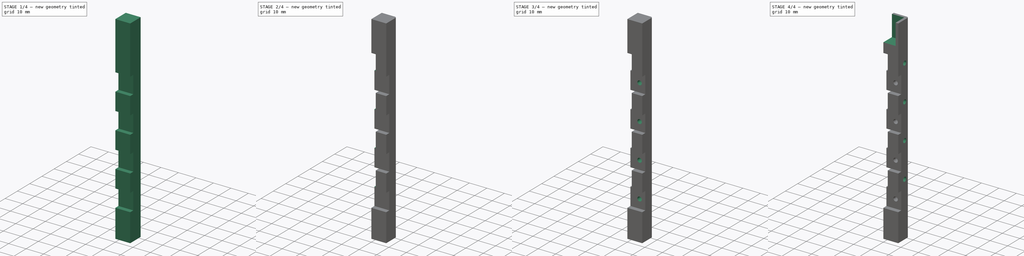
[diagram: build sequence overview — one tinted view per stage of 4, left to right]
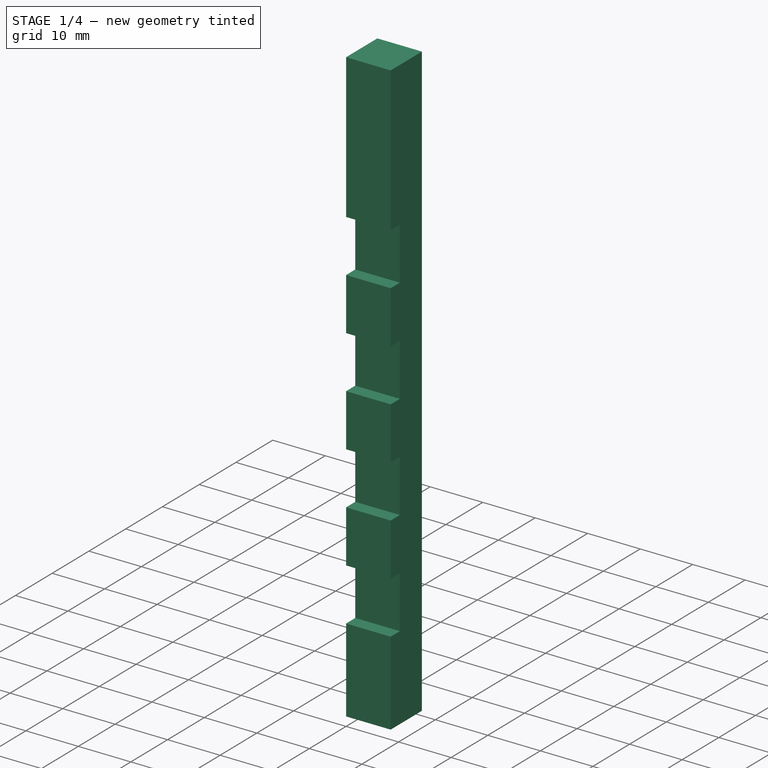
[diagram: stage 1 of 4 — iso view after this stage's code; geometry added in this stage tinted green]
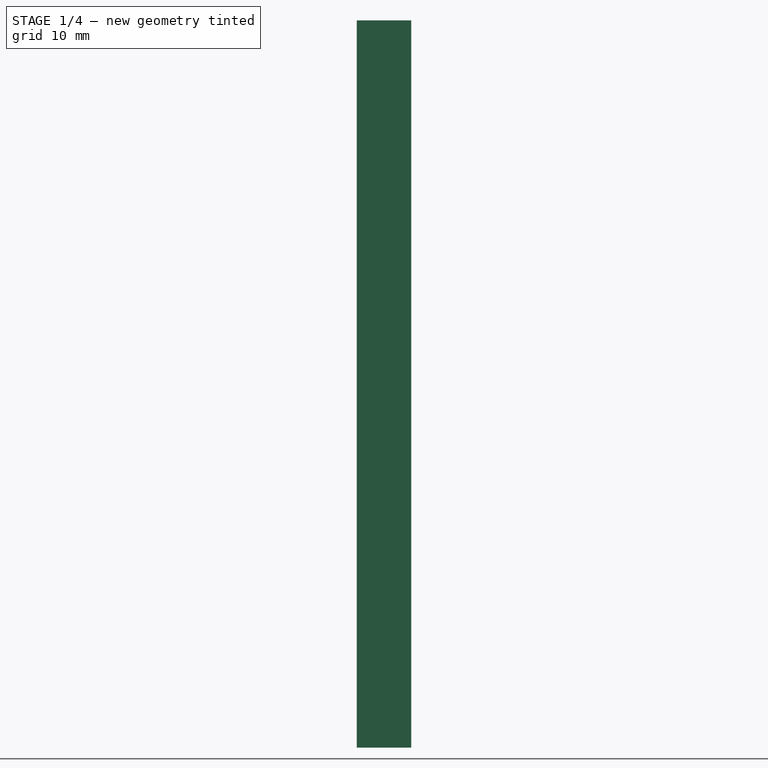
[diagram: stage 1 of 4 — front view after this stage's code; geometry added in this stage tinted green]
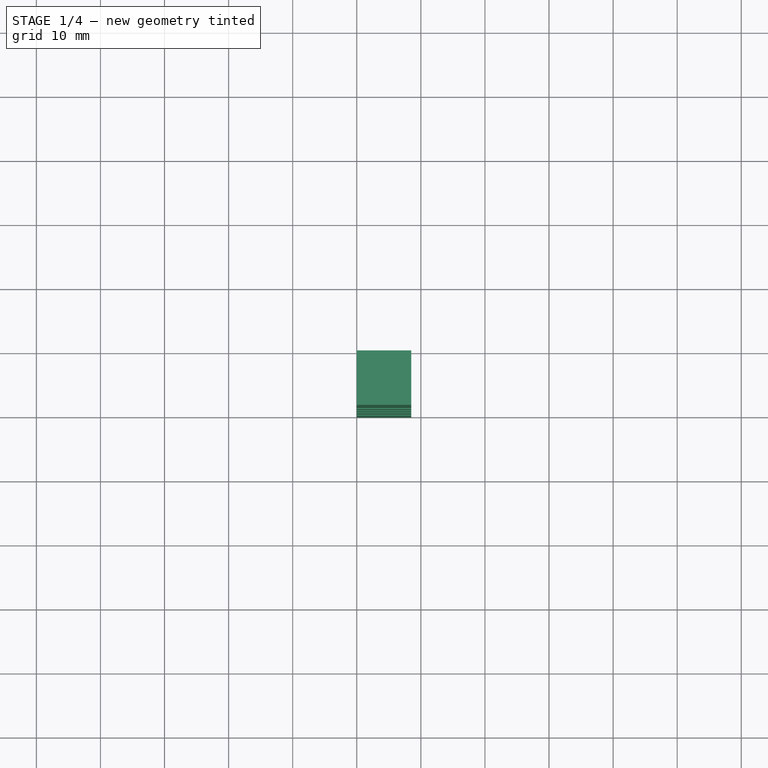
[diagram: stage 1 of 4 — top view after this stage's code; geometry added in this stage tinted green]
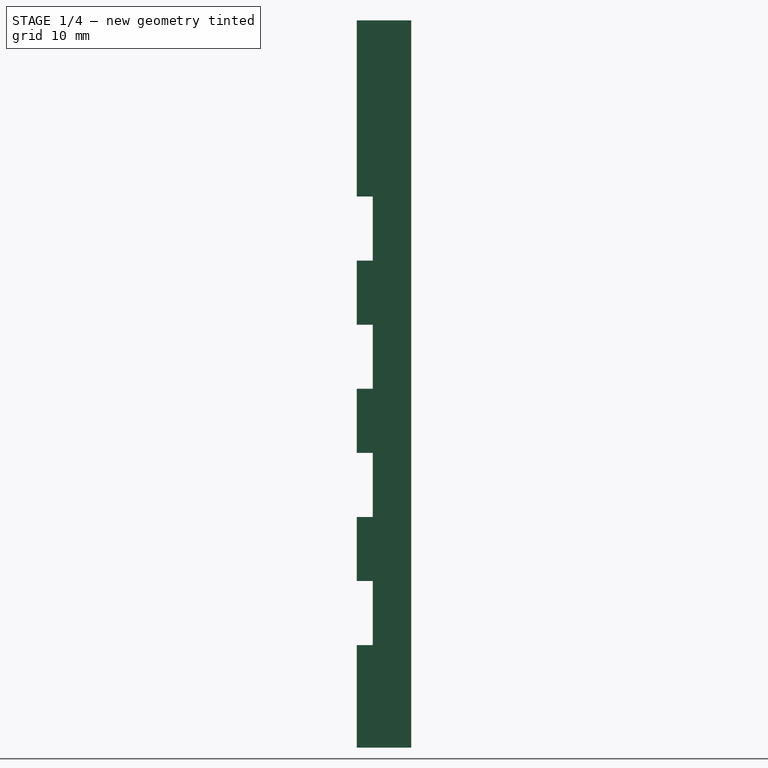
[diagram: stage 1 of 4 — right view after this stage's code; geometry added in this stage tinted green]
FCSTD DOCUMENT  (FreeCAD 0.16R6710 (Git))
Label: columna-con-deployment-switch
License: All rights reserved
LicenseURL: http://en.wikipedia.org/wiki/All_rights_reserved
objects: Drawing::FeatureViewPython×21, Sketcher::SketchObject×6, PartDesign::Pocket×5, PartDesign::LinearPattern×4, Drawing::FeatureViewPart×4, PartDesign::Pad×1, PartDesign::Fillet×1, Drawing::FeaturePage×1
note: 23 computed .brp shape members not serialized (recipe doc carries the construction recipe); baked Part::Feature solids carry a one-line shape summary decoded from their .brp

FEATURE [Sketcher::SketchObject] Sketch
  sketch-geometry (4):
    g0: LineSegment StartX=0 StartY=0 StartZ=0 EndX=8.5 EndY=0 EndZ=0
    g1: LineSegment StartX=8.5 StartY=0 StartZ=0 EndX=8.5 EndY=8.5 EndZ=0
    g2: LineSegment StartX=8.5 StartY=8.5 StartZ=0 EndX=0 EndY=8.5 EndZ=0
    g3: LineSegment StartX=0 StartY=8.5 StartZ=0 EndX=0 EndY=0 EndZ=0
  constraints (11):
    c: Coincident(g0,g1)
    c: Coincident(g1,g2)
    c: Coincident(g2,g3)
    c: Coincident(g3,g0)
    c: Horizontal(g0)
    c: Horizontal(g2)
    c: Vertical(g1)
    c: Vertical(g3)
    c: Equal(g0,g1)
    c: DistanceY(g1,g1) = 8.5
    c: Coincident(g0,g-1)
FEATURE [PartDesign::Pad] Pad
  Length = 113.5
  Length2 = 100
  Sketch = -> Sketch
  Type = 0
FEATURE [Sketcher::SketchObject] Sketch001
  ExternalGeometry = -> [Pad]
  Placement = pos=(0,0,0) rot=(1,0,0;1.5708rad)
  Support = -> Pad [Face1]
  sketch-geometry (4):
    g0: LineSegment StartX=-0.589031 StartY=16 StartZ=0 EndX=9.41097 EndY=16 EndZ=0
    g1: LineSegment StartX=9.41097 StartY=16 StartZ=0 EndX=9.41097 EndY=26 EndZ=0
    g2: LineSegment StartX=9.41097 StartY=26 StartZ=0 EndX=-0.589031 EndY=26 EndZ=0
    g3: LineSegment StartX=-0.589031 StartY=26 StartZ=0 EndX=-0.589031 EndY=16 EndZ=0
  constraints (11):
    c: Coincident(g0,g1)
    c: Coincident(g1,g2)
    c: Coincident(g2,g3)
    c: Coincident(g3,g0)
    c: Horizontal(g0)
    c: Horizontal(g2)
    c: Vertical(g1)
    c: Vertical(g3)
    c: Equal(g1,g0)
    c: DistanceY(g1,g1) = 10
    c: DistanceY(g-1,g0) = 16
FEATURE [PartDesign::Pocket] Pocket
  Length = 2.5
  Sketch = -> Sketch001
  Type = 0
FEATURE [PartDesign::LinearPattern] LinearPattern
  Direction = -> Sketch001 [V_Axis]
  Length = 60
  Occurrences = 4
  Originals = -> [Pocket]
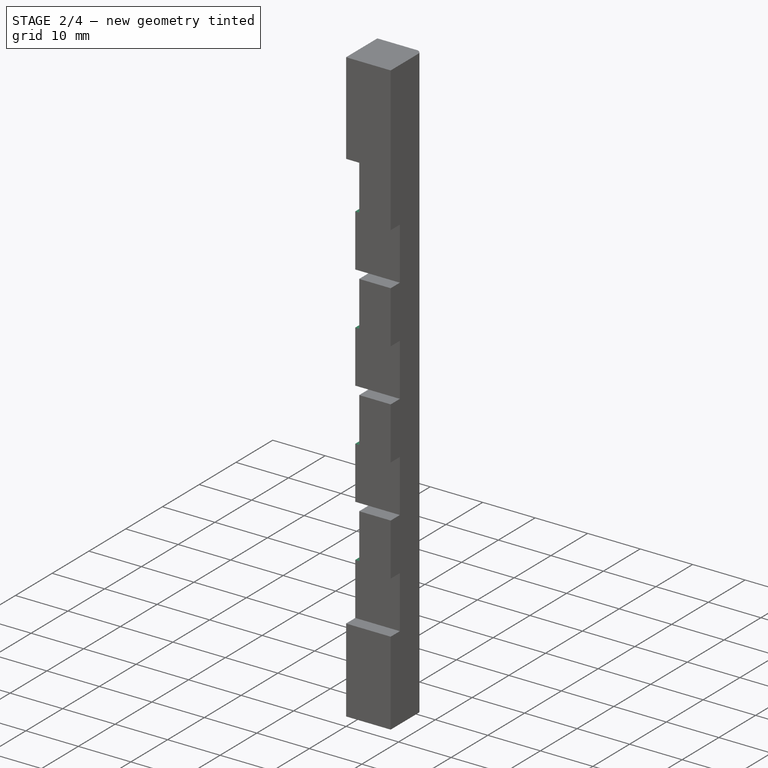
[diagram: stage 2 of 4 — iso view after this stage's code; geometry added in this stage tinted green]
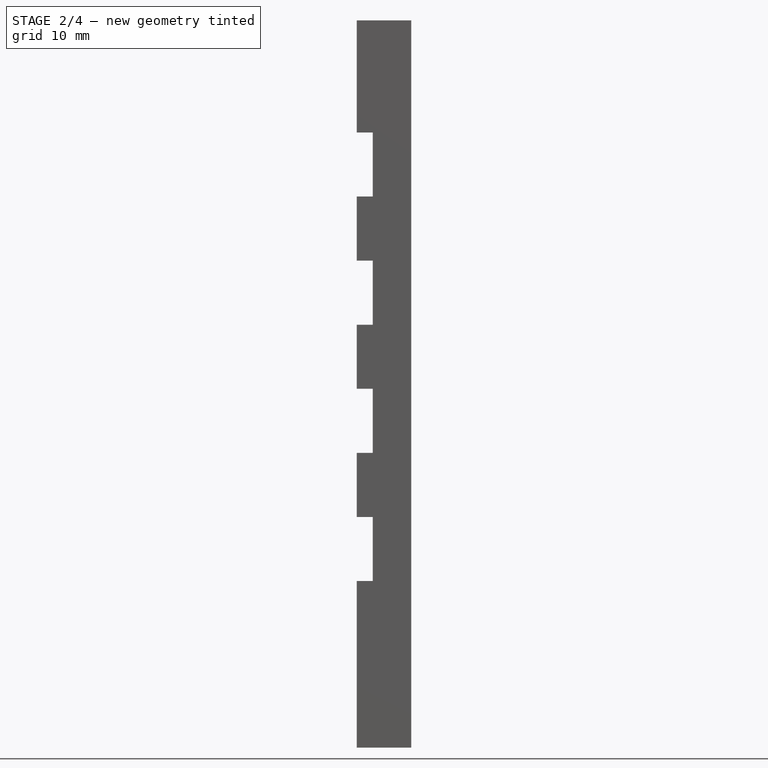
[diagram: stage 2 of 4 — front view after this stage's code; geometry added in this stage tinted green]
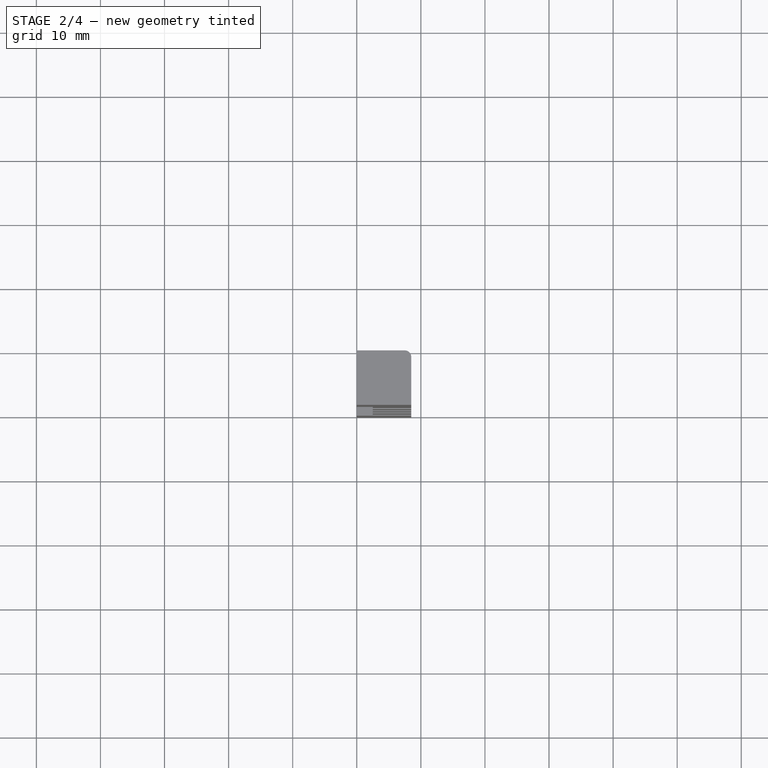
[diagram: stage 2 of 4 — top view after this stage's code; geometry added in this stage tinted green]
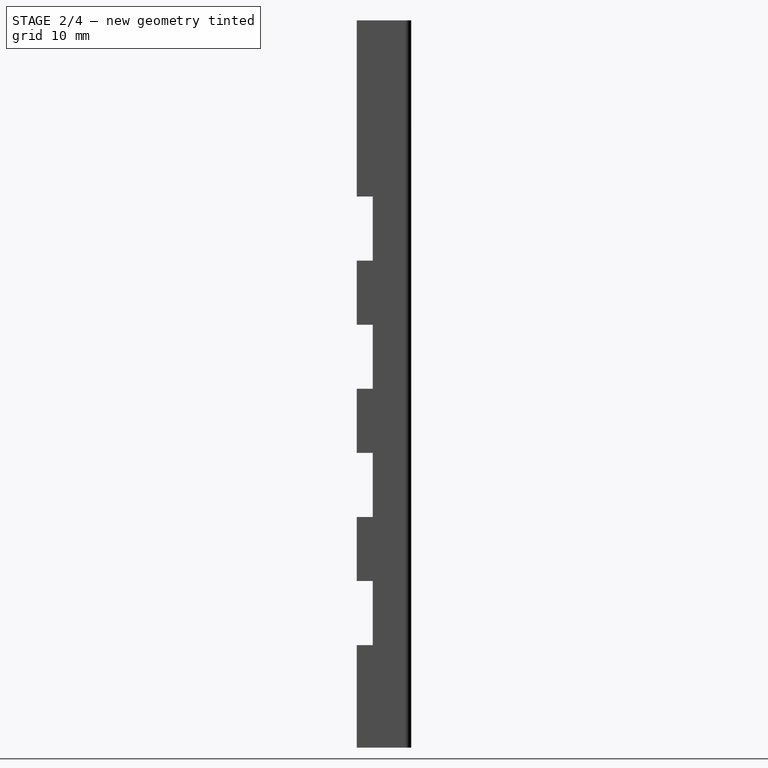
[diagram: stage 2 of 4 — right view after this stage's code; geometry added in this stage tinted green]
FEATURE [Sketcher::SketchObject] Sketch002
  Placement = pos=(0,0,0) rot=(0.57735,-0.57735,-0.57735;2.0944rad)
  Support = -> LinearPattern [Face5]
  sketch-geometry (4):
    g0: LineSegment StartX=-9.32683 StartY=36 StartZ=0 EndX=0.673175 EndY=36 EndZ=0
    g1: LineSegment StartX=0.673175 StartY=36 StartZ=0 EndX=0.673175 EndY=26 EndZ=0
    g2: LineSegment StartX=0.673175 StartY=26 StartZ=0 EndX=-9.32683 EndY=26 EndZ=0
    g3: LineSegment StartX=-9.32683 StartY=26 StartZ=0 EndX=-9.32683 EndY=36 EndZ=0
  constraints (11):
    c: Coincident(g0,g1)
    c: Coincident(g1,g2)
    c: Coincident(g2,g3)
    c: Coincident(g3,g0)
    c: Horizontal(g0)
    c: Horizontal(g2)
    c: Vertical(g1)
    c: Vertical(g3)
    c: Equal(g2,g1)
    c: DistanceY(g1,g1) = 10
    c: DistanceY(g-1,g2) = 26
FEATURE [PartDesign::Pocket] Pocket001
  Length = 2.5
  Sketch = -> Sketch002
  Type = 0
FEATURE [PartDesign::LinearPattern] LinearPattern001
  Direction = -> Sketch002 [V_Axis]
  Length = 60
  Occurrences = 4
  Originals = -> [Pocket001]
FEATURE [PartDesign::Fillet] Fillet
  Base = -> LinearPattern001 [Edge8]
  Radius = 1
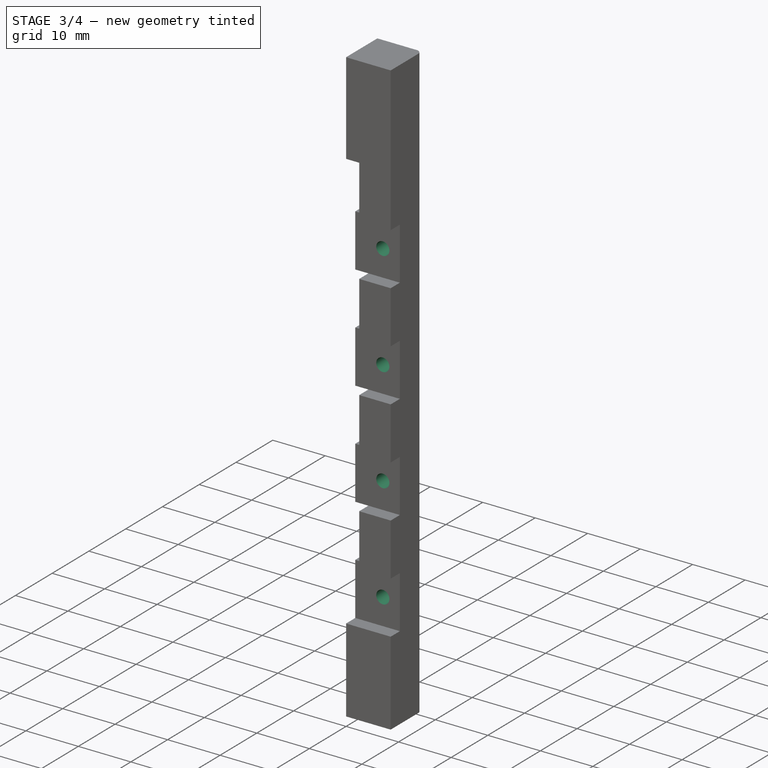
[diagram: stage 3 of 4 — iso view after this stage's code; geometry added in this stage tinted green]
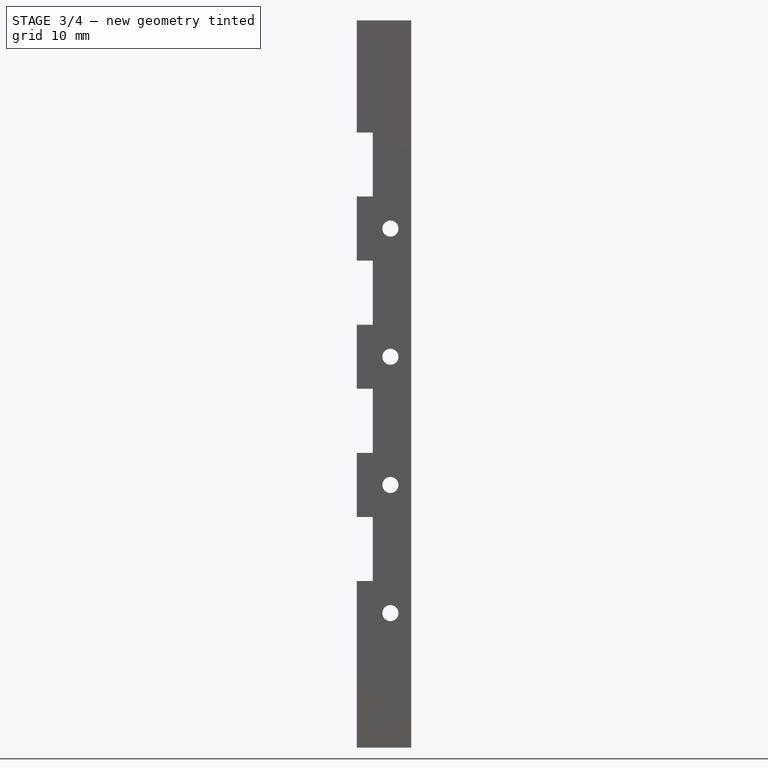
[diagram: stage 3 of 4 — front view after this stage's code; geometry added in this stage tinted green]
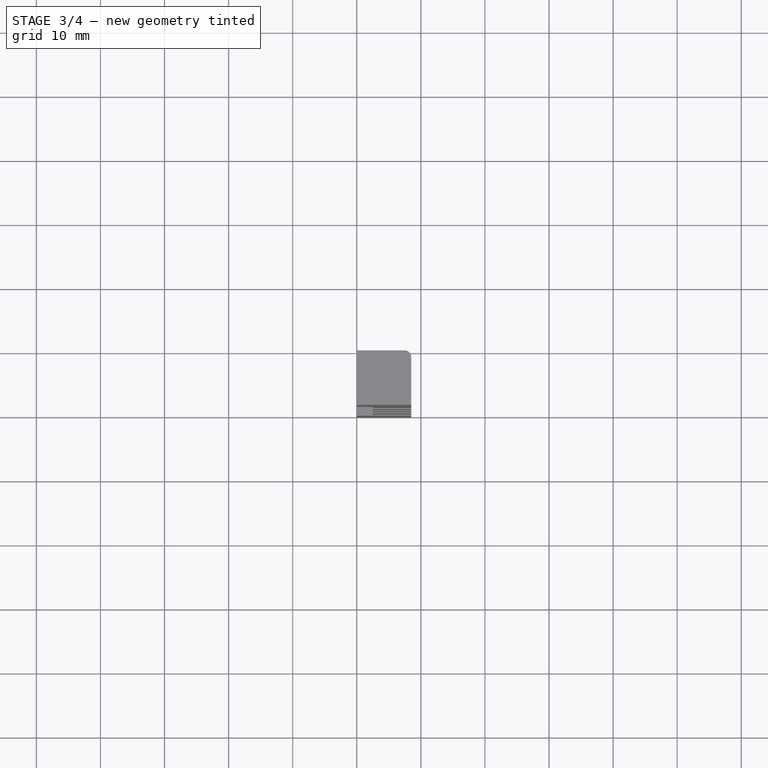
[diagram: stage 3 of 4 — top view after this stage's code; geometry added in this stage tinted green]
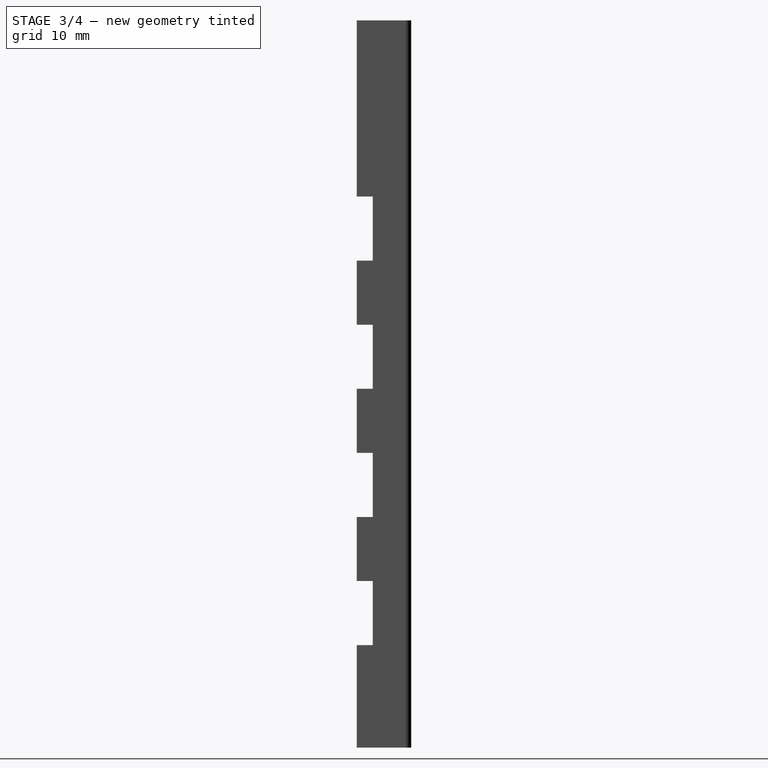
[diagram: stage 3 of 4 — right view after this stage's code; geometry added in this stage tinted green]
FEATURE [Sketcher::SketchObject] Sketch003
  ExternalGeometry = -> [Fillet]
  Placement = pos=(0,2.5,0) rot=(1,0,0;1.5708rad)
  Support = -> Fillet [Face10]
  sketch-geometry (1):
    g0: Circle CenterX=5.25 CenterY=21 CenterZ=0 NormalX=0 NormalY=0 NormalZ=1 Radius=1.25
  constraints (3):
    c: Radius(g0) = 1.25
    c: DistanceY(g-3,g0) = 21
    c: DistanceX(g0,g-3) = 3.25
FEATURE [PartDesign::Pocket] Pocket002
  Length = 5
  Sketch = -> Sketch003
  Type = 1
FEATURE [PartDesign::LinearPattern] LinearPattern002
  Direction = -> Sketch003 [V_Axis]
  Length = 60
  Occurrences = 4
  Originals = -> [Pocket002]
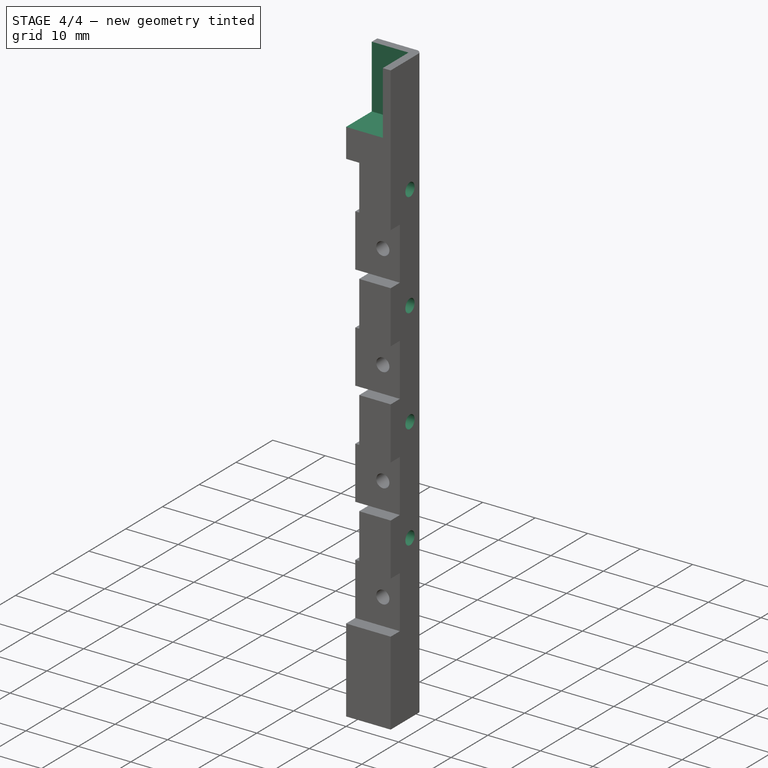
[diagram: stage 4 of 4 — iso view after this stage's code; geometry added in this stage tinted green]
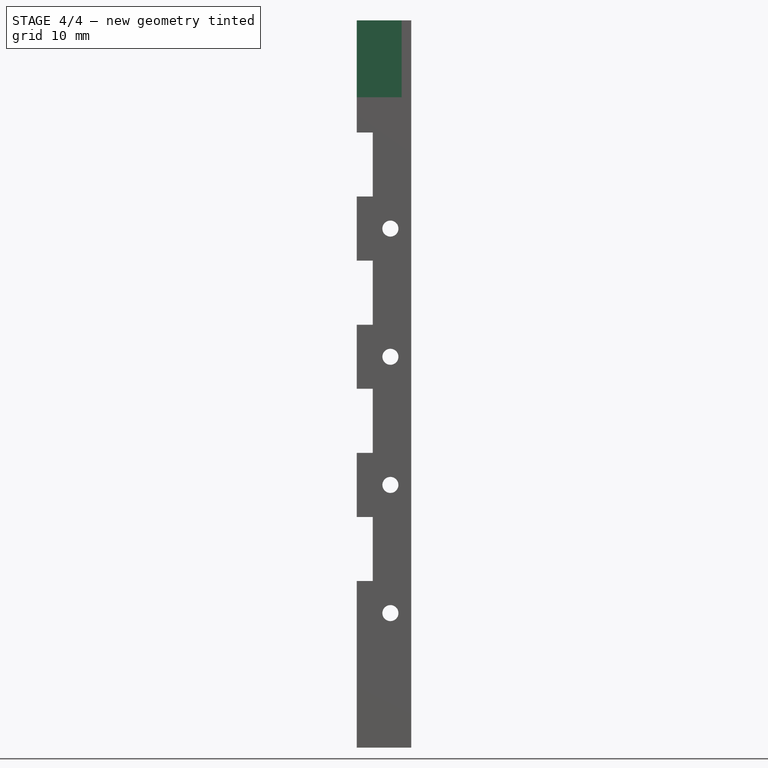
[diagram: stage 4 of 4 — front view after this stage's code; geometry added in this stage tinted green]
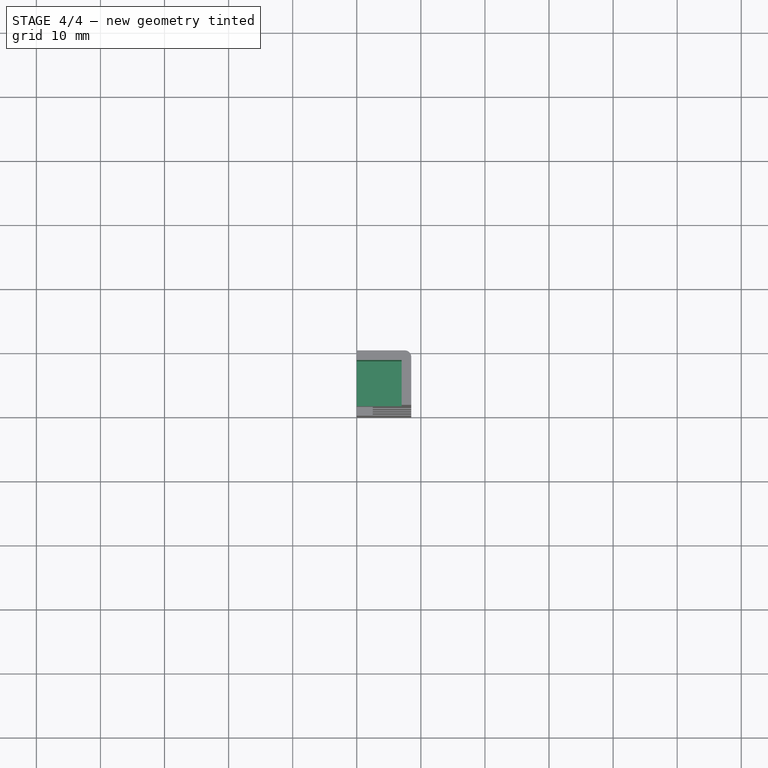
[diagram: stage 4 of 4 — top view after this stage's code; geometry added in this stage tinted green]
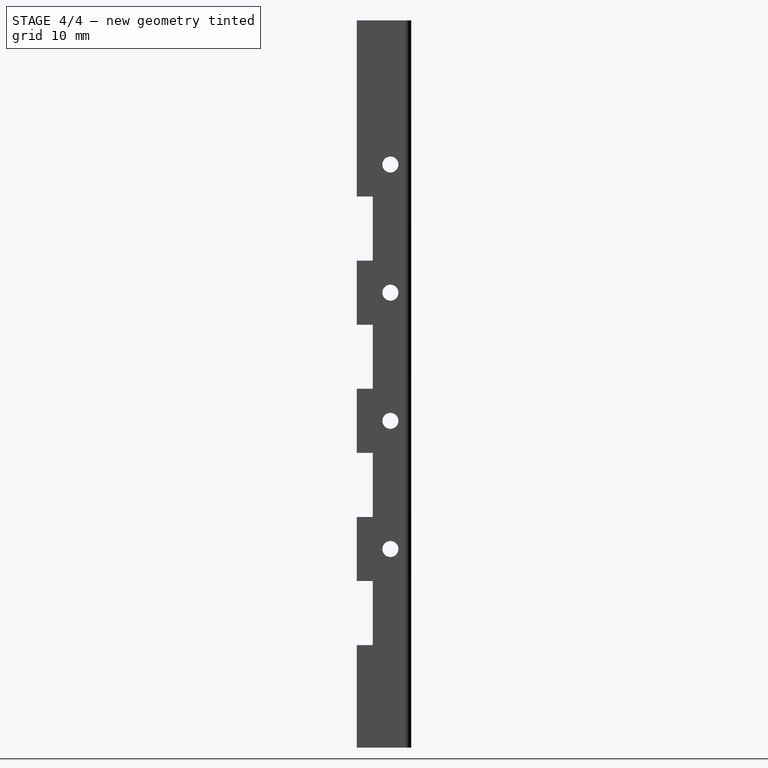
[diagram: stage 4 of 4 — right view after this stage's code; geometry added in this stage tinted green]
FEATURE [Sketcher::SketchObject] Sketch004
  ExternalGeometry = -> [LinearPattern002]
  Placement = pos=(2.5,0,0) rot=(0.57735,-0.57735,-0.57735;2.0944rad)
  Support = -> LinearPattern002 [Face26]
  sketch-geometry (1):
    g0: Circle CenterX=-5.25 CenterY=31 CenterZ=0 NormalX=0 NormalY=0 NormalZ=1 Radius=1.25
  constraints (3):
    c: Radius(g0) = 1.25
    c: DistanceX(g-3,g0) = 3.25
    c: DistanceY(g-3,g0) = 31
FEATURE [PartDesign::Pocket] Pocket003
  Length = 5
  Sketch = -> Sketch004
  Type = 1
FEATURE [PartDesign::LinearPattern] LinearPattern003
  Direction = -> Sketch004 [V_Axis]
  Length = 60
  Occurrences = 4
  Originals = -> [Pocket003]
FEATURE [Sketcher::SketchObject] Sketch005
  ExternalGeometry = -> [LinearPattern003]
  Placement = pos=(0,0,113.5) rot=(0,0,1;0rad)
  Support = -> LinearPattern003 [Face7]
  sketch-geometry (4):
    g0: LineSegment StartX=-1.5 StartY=7 StartZ=0 EndX=7 EndY=7 EndZ=0
    g1: LineSegment StartX=7 StartY=7 StartZ=0 EndX=7 EndY=-1.5 EndZ=0
    g2: LineSegment StartX=7 StartY=-1.5 StartZ=0 EndX=-1.5 EndY=-1.5 EndZ=0
    g3: LineSegment StartX=-1.5 StartY=-1.5 StartZ=0 EndX=-1.5 EndY=7 EndZ=0
  constraints (12):
    c: Coincident(g0,g1)
    c: Coincident(g1,g2)
    c: Coincident(g2,g3)
    c: Coincident(g3,g0)
    c: Horizontal(g0)
    c: Horizontal(g2)
    c: Vertical(g1)
    c: Vertical(g3)
    c: Equal(g3,g2)
    c: DistanceY(g3,g3) = 8.5
    c: DistanceY(g0,g-3) = 1.5
    c: DistanceX(g1,g-4) = 1.5
FEATURE [PartDesign::Pocket] Pocket004
  Length = 12
  Sketch = -> Sketch005
  Type = 0
FEATURE [Drawing::FeatureViewPart] Ortho  label="Ortho_0_0"
  Direction = (0,-1,0)
  HiddenWidth = 0.15
  LineWidth = 0.35
  Rotation = 0
  Scale = 1.5
  ShowHiddenLines = false
  ShowSmoothLines = false
  Source = -> Pocket004
  Tolerance = 0.05
  ViewResult = <blob: 4509 chars omitted>
  Visible = true
  X = 255.667
  Y = 64.9167
FEATURE [Drawing::FeatureViewPart] Ortho001  label="Ortho_-1_0"
  Direction = (0,0,1)
  HiddenWidth = 0.15
  LineWidth = 0.35
  Rotation = -90
  Scale = 1.5
  ShowHiddenLines = false
  ShowSmoothLines = false
  Source = -> Pocket004
  Tolerance = 0.05
  ViewResult = <g id="Ortho_-1_0"\n   transform="rotate(-90,54.0833,64.9167) translate(54.0833,64.9167) scale(1.5,1.5)"\n  >\n<g   stroke="rgb(0, 0, 0)"\n   stroke-width="0.233333"\n   stroke-linecap="butt"\n   stroke-linejoin="miter"\n   fill="none"\n   transform="scale(1,-1)"\n  >\n<path id= "1" d=" M 8.5 0 L 8.5 7.5 " />\n<path d="M8.5 7.5 A1 1 0 0 1 7.5 8.5" /><path id= "3" d=" M 7.5 8.5 L 0 8.5 " />\n<path id= "4" d=" M 0 3.55271e-15 L 0 2.5 " />\n<path id= "5" d=" M 0 8.5 L 0 7 " />\n<path id= "6" d=" M 0 7 L 7 7 " />\n<path id= "7" d=" M 7 7 L 7 0 " />\n<path id= "8" d=" M 7 0 L 8.5 0 " />\n<path id= "9" d=" M 0 0 L 7 0 " />\n<path id= "10" d=" M 0 7 L 0 0 " />\n<path id= "11" d=" M 0 2.5 L 0 7 " />\n</g>\n</g>
  Visible = true
  X = 54.0833
  Y = 64.9167
FEATURE [Drawing::FeatureViewPart] Ortho002  label="Ortho_0_-1"
  Direction = (-1,0,0)
  HiddenWidth = 0.15
  LineWidth = 0.35
  Rotation = 0
  Scale = 1.5
  ShowHiddenLines = false
  ShowSmoothLines = false
  Source = -> Pocket004
  Tolerance = 0.05
  ViewResult = <blob: 2641 chars omitted>
  Visible = true
  X = 255.667
  Y = 107.083
FEATURE [Drawing::FeatureViewPart] Ortho003  label="Ortho_-1_-1"
  Direction = (-0.58,-0.58,0.58)
  HiddenWidth = 0.15
  LineWidth = 0.35
  Rotation = -80
  Scale = 0.9
  ShowHiddenLines = false
  ShowSmoothLines = false
  Source = -> Pocket004
  Tolerance = 0.05
  ViewResult = <blob: 7313 chars omitted>
  Visible = true
  X = 70
  Y = 180
FEATURE [Drawing::FeatureViewPython] dimStack001  # drawing view (typed FeaturePython)
  Rotation = 0
  ViewResult = <g> <line x1="255.667000" y1="105.082999" x2="255.667000" y2="98.859544" style="stroke:rgb(0,0,255);stroke-width:0.50" />\n<line x1="231.667000" y1="105.082999" x2="231.667000" y2="98.859544" style="stroke:rgb(0,0,255);stroke-width:0.50" />\n<line x1="255.667000" y1="99.859544" x2="231.667000" y2="99.859544" style="stroke:rgb(0,0,255);stroke-width:0.50" />\n<polygon points="255.667000,99.859544 252.667000,98.859544 251.667000,99.859544 252.667000,100.859544" style="fill:rgb(0,0,255);stroke:rgb(0,0,255);stroke-width:0" />\n<polygon points="231.667000,99.859544 234.667000,100.859544 235.667000,99.859544 234.667000,98.859544" style="fill:rgb(0,0,255);stroke:rgb(0,0,255);stroke-width:0" />\n<text x="243.667000" y="97.859544" font-family="inherit" font-size="3.6" fill="rgb(0,0,255)" text-anchor="middle" transform="rotate(0.000000 243.667000,97.859544)" >16</text> </g> 
  Visible = true
  X = 0
  Y = 0
  arrowL1 = 3
  arrowL2 = 1
  arrowW = 2
  arrow_scheme = 0
  autoPlaceOffset = 2
  click1_x = 248.444
  click1_y = 99.8595
  comma_decimal_place = false
  dimension_line_overshoot = 1
  gap_datum_points = 2
  lineColor = rgb(0,0,255)
  stack_offset = 7
  stack_offset0 = 0
  strokeWidth = 0.5
  textFormat_linear = %(value)3.3f
  textRenderer_color = rgb(0,0,255)
  textRenderer_family = inherit
  textRenderer_size = 3.6
  unit_custom_scale = 1
  unit_scheme = 0
FEATURE [Drawing::FeatureViewPython] dimStack002  # drawing view (typed FeaturePython)
  Rotation = 0
  ViewResult = <g> <line x1="231.667000" y1="105.082999" x2="231.667000" y2="98.859544" style="stroke:rgb(0,0,255);stroke-width:0.50" />\n<line x1="216.667000" y1="105.082999" x2="216.667000" y2="98.859544" style="stroke:rgb(0,0,255);stroke-width:0.50" />\n<line x1="231.667000" y1="99.859544" x2="216.667000" y2="99.859544" style="stroke:rgb(0,0,255);stroke-width:0.50" />\n<polygon points="231.667000,99.859544 228.667000,98.859544 227.667000,99.859544 228.667000,100.859544" style="fill:rgb(0,0,255);stroke:rgb(0,0,255);stroke-width:0" />\n<polygon points="216.667000,99.859544 219.667000,100.859544 220.667000,99.859544 219.667000,98.859544" style="fill:rgb(0,0,255);stroke:rgb(0,0,255);stroke-width:0" />\n<text x="224.167000" y="97.859544" font-family="inherit" font-size="3.6" fill="rgb(0,0,255)" text-anchor="middle" transform="rotate(0.000000 224.167000,97.859544)" >10</text> </g> 
  Visible = true
  X = 0
  Y = 0
  arrowL1 = 3
  arrowL2 = 1
  arrowW = 2
  arrow_scheme = 0
  autoPlaceOffset = 2
  click1_x = 225.098
  click1_y = 99.8595
  comma_decimal_place = false
  dimension_line_overshoot = 1
  gap_datum_points = 2
  lineColor = rgb(0,0,255)
  stack_offset = 7
  stack_offset0 = 0
  strokeWidth = 0.5
  textFormat_linear = %(value)3.3f
  textRenderer_color = rgb(0,0,255)
  textRenderer_family = inherit
  textRenderer_size = 3.6
  unit_custom_scale = 1
  unit_scheme = 0
FEATURE [Drawing::FeatureViewPython] dimStack003  # drawing view (typed FeaturePython)
  Rotation = 0
  ViewResult = <g> <line x1="216.667000" y1="105.082999" x2="216.667000" y2="98.859544" style="stroke:rgb(0,0,255);stroke-width:0.50" />\n<line x1="201.667000" y1="105.082999" x2="201.667000" y2="98.859544" style="stroke:rgb(0,0,255);stroke-width:0.50" />\n<line x1="216.667000" y1="99.859544" x2="201.667000" y2="99.859544" style="stroke:rgb(0,0,255);stroke-width:0.50" />\n<polygon points="216.667000,99.859544 213.667000,98.859544 212.667000,99.859544 213.667000,100.859544" style="fill:rgb(0,0,255);stroke:rgb(0,0,255);stroke-width:0" />\n<polygon points="201.667000,99.859544 204.667000,100.859544 205.667000,99.859544 204.667000,98.859544" style="fill:rgb(0,0,255);stroke:rgb(0,0,255);stroke-width:0" />\n<text x="209.167000" y="97.859544" font-family="inherit" font-size="3.6" fill="rgb(0,0,255)" text-anchor="middle" transform="rotate(0.000000 209.167000,97.859544)" >10</text> </g> 
  Visible = true
  X = 0
  Y = 0
  arrowL1 = 3
  arrowL2 = 1
  arrowW = 2
  arrow_scheme = 0
  autoPlaceOffset = 2
  click1_x = 211.241
  click1_y = 99.8595
  comma_decimal_place = false
  dimension_line_overshoot = 1
  gap_datum_points = 2
  lineColor = rgb(0,0,255)
  stack_offset = 7
  stack_offset0 = 0
  strokeWidth = 0.5
  textFormat_linear = %(value)3.3f
  textRenderer_color = rgb(0,0,255)
  textRenderer_family = inherit
  textRenderer_size = 3.6
  unit_custom_scale = 1
  unit_scheme = 0
FEATURE [Drawing::FeatureViewPython] dimStack004  # drawing view (typed FeaturePython)
  Rotation = 0
  ViewResult = <g> <line x1="201.667000" y1="105.082999" x2="201.667000" y2="98.859544" style="stroke:rgb(0,0,255);stroke-width:0.50" />\n<line x1="186.667000" y1="105.082999" x2="186.667000" y2="98.859544" style="stroke:rgb(0,0,255);stroke-width:0.50" />\n<line x1="201.667000" y1="99.859544" x2="186.667000" y2="99.859544" style="stroke:rgb(0,0,255);stroke-width:0.50" />\n<polygon points="201.667000,99.859544 198.667000,98.859544 197.667000,99.859544 198.667000,100.859544" style="fill:rgb(0,0,255);stroke:rgb(0,0,255);stroke-width:0" />\n<polygon points="186.667000,99.859544 189.667000,100.859544 190.667000,99.859544 189.667000,98.859544" style="fill:rgb(0,0,255);stroke:rgb(0,0,255);stroke-width:0" />\n<text x="194.167000" y="97.859544" font-family="inherit" font-size="3.6" fill="rgb(0,0,255)" text-anchor="middle" transform="rotate(0.000000 194.167000,97.859544)" >10</text> </g> 
  Visible = true
  X = 0
  Y = 0
  arrowL1 = 3
  arrowL2 = 1
  arrowW = 2
  arrow_scheme = 0
  autoPlaceOffset = 2
  click1_x = 196.933
  click1_y = 99.8595
  comma_decimal_place = false
  dimension_line_overshoot = 1
  gap_datum_points = 2
  lineColor = rgb(0,0,255)
  stack_offset = 7
  stack_offset0 = 0
  strokeWidth = 0.5
  textFormat_linear = %(value)3.3f
  textRenderer_color = rgb(0,0,255)
  textRenderer_family = inherit
  textRenderer_size = 3.6
  unit_custom_scale = 1
  unit_scheme = 0
FEATURE [Drawing::FeatureViewPython] dimStack005  # drawing view (typed FeaturePython)
  Rotation = 0
  ViewResult = <g> <line x1="186.667000" y1="105.082999" x2="186.667000" y2="98.859544" style="stroke:rgb(0,0,255);stroke-width:0.50" />\n<line x1="171.667000" y1="105.082999" x2="171.667000" y2="98.859544" style="stroke:rgb(0,0,255);stroke-width:0.50" />\n<line x1="186.667000" y1="99.859544" x2="171.667000" y2="99.859544" style="stroke:rgb(0,0,255);stroke-width:0.50" />\n<polygon points="186.667000,99.859544 183.667000,98.859544 182.667000,99.859544 183.667000,100.859544" style="fill:rgb(0,0,255);stroke:rgb(0,0,255);stroke-width:0" />\n<polygon points="171.667000,99.859544 174.667000,100.859544 175.667000,99.859544 174.667000,98.859544" style="fill:rgb(0,0,255);stroke:rgb(0,0,255);stroke-width:0" />\n<text x="179.167000" y="97.859544" font-family="inherit" font-size="3.6" fill="rgb(0,0,255)" text-anchor="middle" transform="rotate(0.000000 179.167000,97.859544)" >10</text> </g> 
  Visible = true
  X = 0
  Y = 0
  arrowL1 = 3
  arrowL2 = 1
  arrowW = 2
  arrow_scheme = 0
  autoPlaceOffset = 2
  click1_x = 180.214
  click1_y = 99.8595
  comma_decimal_place = false
  dimension_line_overshoot = 1
  gap_datum_points = 2
  lineColor = rgb(0,0,255)
  stack_offset = 7
  stack_offset0 = 0
  strokeWidth = 0.5
  textFormat_linear = %(value)3.3f
  textRenderer_color = rgb(0,0,255)
  textRenderer_family = inherit
  textRenderer_size = 3.6
  unit_custom_scale = 1
  unit_scheme = 0
FEATURE [Drawing::FeatureViewPython] dimStack006  # drawing view (typed FeaturePython)
  Rotation = 0
  ViewResult = <g> <line x1="171.667000" y1="105.082999" x2="171.667000" y2="98.859544" style="stroke:rgb(0,0,255);stroke-width:0.50" />\n<line x1="156.667000" y1="105.082999" x2="156.667000" y2="98.859544" style="stroke:rgb(0,0,255);stroke-width:0.50" />\n<line x1="171.667000" y1="99.859544" x2="156.667000" y2="99.859544" style="stroke:rgb(0,0,255);stroke-width:0.50" />\n<polygon points="171.667000,99.859544 168.667000,98.859544 167.667000,99.859544 168.667000,100.859544" style="fill:rgb(0,0,255);stroke:rgb(0,0,255);stroke-width:0" />\n<polygon points="156.667000,99.859544 159.667000,100.859544 160.667000,99.859544 159.667000,98.859544" style="fill:rgb(0,0,255);stroke:rgb(0,0,255);stroke-width:0" />\n<text x="164.167000" y="97.859544" font-family="inherit" font-size="3.6" fill="rgb(0,0,255)" text-anchor="middle" transform="rotate(0.000000 164.167000,97.859544)" >10</text> </g> 
  Visible = true
  X = 0
  Y = 0
  arrowL1 = 3
  arrowL2 = 1
  arrowW = 2
  arrow_scheme = 0
  autoPlaceOffset = 2
  click1_x = 167.11
  click1_y = 99.8595
  comma_decimal_place = false
  dimension_line_overshoot = 1
  gap_datum_points = 2
  lineColor = rgb(0,0,255)
  stack_offset = 7
  stack_offset0 = 0
  strokeWidth = 0.5
  textFormat_linear = %(value)3.3f
  textRenderer_color = rgb(0,0,255)
  textRenderer_family = inherit
  textRenderer_size = 3.6
  unit_custom_scale = 1
  unit_scheme = 0
FEATURE [Drawing::FeatureViewPython] dimStack007  # drawing view (typed FeaturePython)
  Rotation = 0
  ViewResult = <g> <line x1="156.667000" y1="105.082999" x2="156.667000" y2="98.859544" style="stroke:rgb(0,0,255);stroke-width:0.50" />\n<line x1="141.667000" y1="105.082999" x2="141.667000" y2="98.859544" style="stroke:rgb(0,0,255);stroke-width:0.50" />\n<line x1="156.667000" y1="99.859544" x2="141.667000" y2="99.859544" style="stroke:rgb(0,0,255);stroke-width:0.50" />\n<polygon points="156.667000,99.859544 153.667000,98.859544 152.667000,99.859544 153.667000,100.859544" style="fill:rgb(0,0,255);stroke:rgb(0,0,255);stroke-width:0" />\n<polygon points="141.667000,99.859544 144.667000,100.859544 145.667000,99.859544 144.667000,98.859544" style="fill:rgb(0,0,255);stroke:rgb(0,0,255);stroke-width:0" />\n<text x="149.167000" y="97.859544" font-family="inherit" font-size="3.6" fill="rgb(0,0,255)" text-anchor="middle" transform="rotate(0.000000 149.167000,97.859544)" >10</text> </g> 
  Visible = true
  X = 0
  Y = 0
  arrowL1 = 3
  arrowL2 = 1
  arrowW = 2
  arrow_scheme = 0
  autoPlaceOffset = 2
  click1_x = 152.124
  click1_y = 99.8595
  comma_decimal_place = false
  dimension_line_overshoot = 1
  gap_datum_points = 2
  lineColor = rgb(0,0,255)
  stack_offset = 7
  stack_offset0 = 0
  strokeWidth = 0.5
  textFormat_linear = %(value)3.3f
  textRenderer_color = rgb(0,0,255)
  textRenderer_family = inherit
  textRenderer_size = 3.6
  unit_custom_scale = 1
  unit_scheme = 0
FEATURE [Drawing::FeatureViewPython] dimStack008  # drawing view (typed FeaturePython)
  Rotation = 0
  ViewResult = <g> <line x1="141.667000" y1="105.082999" x2="141.667000" y2="98.934853" style="stroke:rgb(0,0,255);stroke-width:0.50" />\n<line x1="126.667000" y1="105.082999" x2="126.667000" y2="98.934853" style="stroke:rgb(0,0,255);stroke-width:0.50" />\n<line x1="141.667000" y1="99.934853" x2="126.667000" y2="99.934853" style="stroke:rgb(0,0,255);stroke-width:0.50" />\n<polygon points="141.667000,99.934853 138.667000,98.934853 137.667000,99.934853 138.667000,100.934853" style="fill:rgb(0,0,255);stroke:rgb(0,0,255);stroke-width:0" />\n<polygon points="126.667000,99.934853 129.667000,100.934853 130.667000,99.934853 129.667000,98.934853" style="fill:rgb(0,0,255);stroke:rgb(0,0,255);stroke-width:0" />\n<text x="134.167000" y="97.934853" font-family="inherit" font-size="3.6" fill="rgb(0,0,255)" text-anchor="middle" transform="rotate(0.000000 134.167000,97.934853)" >10</text> </g> 
  Visible = true
  X = 0
  Y = 0
  arrowL1 = 3
  arrowL2 = 1
  arrowW = 2
  arrow_scheme = 0
  autoPlaceOffset = 2
  click1_x = 135.104
  click1_y = 99.9349
  comma_decimal_place = false
  dimension_line_overshoot = 1
  gap_datum_points = 2
  lineColor = rgb(0,0,255)
  stack_offset = 7
  stack_offset0 = 0
  strokeWidth = 0.5
  textFormat_linear = %(value)3.3f
  textRenderer_color = rgb(0,0,255)
  textRenderer_family = inherit
  textRenderer_size = 3.6
  unit_custom_scale = 1
  unit_scheme = 0
FEATURE [Drawing::FeatureViewPython] dimStack009  # drawing view (typed FeaturePython)
  Rotation = 0
  ViewResult = <g> <line x1="126.667000" y1="105.082999" x2="126.667000" y2="98.934853" style="stroke:rgb(0,0,255);stroke-width:0.50" />\n<line x1="111.667000" y1="105.082999" x2="111.667000" y2="98.934853" style="stroke:rgb(0,0,255);stroke-width:0.50" />\n<line x1="126.667000" y1="99.934853" x2="111.667000" y2="99.934853" style="stroke:rgb(0,0,255);stroke-width:0.50" />\n<polygon points="126.667000,99.934853 123.667000,98.934853 122.667000,99.934853 123.667000,100.934853" style="fill:rgb(0,0,255);stroke:rgb(0,0,255);stroke-width:0" />\n<polygon points="111.667000,99.934853 114.667000,100.934853 115.667000,99.934853 114.667000,98.934853" style="fill:rgb(0,0,255);stroke:rgb(0,0,255);stroke-width:0" />\n<text x="119.167000" y="97.934853" font-family="inherit" font-size="3.6" fill="rgb(0,0,255)" text-anchor="middle" transform="rotate(0.000000 119.167000,97.934853)" >10</text> </g> 
  Visible = true
  X = 0
  Y = 0
  arrowL1 = 3
  arrowL2 = 1
  arrowW = 2
  arrow_scheme = 0
  autoPlaceOffset = 2
  click1_x = 120.645
  click1_y = 99.9349
  comma_decimal_place = false
  dimension_line_overshoot = 1
  gap_datum_points = 2
  lineColor = rgb(0,0,255)
  stack_offset = 7
  stack_offset0 = 0
  strokeWidth = 0.5
  textFormat_linear = %(value)3.3f
  textRenderer_color = rgb(0,0,255)
  textRenderer_family = inherit
  textRenderer_size = 3.6
  unit_custom_scale = 1
  unit_scheme = 0
FEATURE [Drawing::FeatureViewPython] dimStack010  # drawing view (typed FeaturePython)
  Rotation = 0
  ViewResult = <g> <line x1="103.417000" y1="105.082999" x2="103.417000" y2="99.311398" style="stroke:rgb(0,0,255);stroke-width:0.50" />\n<line x1="85.417000" y1="105.082999" x2="85.417000" y2="99.311398" style="stroke:rgb(0,0,255);stroke-width:0.50" />\n<line x1="103.417000" y1="100.311398" x2="85.417000" y2="100.311398" style="stroke:rgb(0,0,255);stroke-width:0.50" />\n<polygon points="103.417000,100.311398 100.417000,99.311398 99.417000,100.311398 100.417000,101.311398" style="fill:rgb(0,0,255);stroke:rgb(0,0,255);stroke-width:0" />\n<polygon points="85.417000,100.311398 88.417000,101.311398 89.417000,100.311398 88.417000,99.311398" style="fill:rgb(0,0,255);stroke:rgb(0,0,255);stroke-width:0" />\n<text x="94.417000" y="98.311398" font-family="inherit" font-size="3.6" fill="rgb(0,0,255)" text-anchor="middle" transform="rotate(0.000000 94.417000,98.311398)" >12</text> </g> 
  Visible = true
  X = 0
  Y = 0
  arrowL1 = 3
  arrowL2 = 1
  arrowW = 2
  arrow_scheme = 0
  autoPlaceOffset = 2
  click1_x = 99.483
  click1_y = 100.311
  comma_decimal_place = false
  dimension_line_overshoot = 1
  gap_datum_points = 2
  lineColor = rgb(0,0,255)
  stack_offset = 7
  stack_offset0 = 0
  strokeWidth = 0.5
  textFormat_linear = %(value)3.3f
  textRenderer_color = rgb(0,0,255)
  textRenderer_family = inherit
  textRenderer_size = 3.6
  unit_custom_scale = 1
  unit_scheme = 0
FEATURE [Drawing::FeatureViewPython] dimStack011  # drawing view (typed FeaturePython)
  Rotation = 0
  ViewResult = <g> <line x1="85.417000" y1="105.082999" x2="85.417000" y2="92.006438" style="stroke:rgb(0,0,255);stroke-width:0.50" />\n<line x1="111.667000" y1="105.082999" x2="111.667000" y2="92.006438" style="stroke:rgb(0,0,255);stroke-width:0.50" />\n<line x1="85.417000" y1="93.006438" x2="111.667000" y2="93.006438" style="stroke:rgb(0,0,255);stroke-width:0.50" />\n<polygon points="85.417000,93.006438 88.417000,94.006438 89.417000,93.006438 88.417000,92.006438" style="fill:rgb(0,0,255);stroke:rgb(0,0,255);stroke-width:0" />\n<polygon points="111.667000,93.006438 108.667000,92.006438 107.667000,93.006438 108.667000,94.006438" style="fill:rgb(0,0,255);stroke:rgb(0,0,255);stroke-width:0" />\n<text x="98.542000" y="91.006438" font-family="inherit" font-size="3.6" fill="rgb(0,0,255)" text-anchor="middle" transform="rotate(0.000000 98.542000,91.006438)" >17.5</text> </g> 
  Visible = true
  X = 0
  Y = 0
  arrowL1 = 3
  arrowL2 = 1
  arrowW = 2
  arrow_scheme = 0
  autoPlaceOffset = 2
  click1_x = 95.1904
  click1_y = 93.0064
  comma_decimal_place = false
  dimension_line_overshoot = 1
  gap_datum_points = 2
  lineColor = rgb(0,0,255)
  stack_offset = 7
  stack_offset0 = 0
  strokeWidth = 0.5
  textFormat_linear = %(value)3.3f
  textRenderer_color = rgb(0,0,255)
  textRenderer_family = inherit
  textRenderer_size = 3.6
  unit_custom_scale = 1
  unit_scheme = 0
FEATURE [Drawing::FeatureViewPython] dimStack012  # drawing view (typed FeaturePython)
  Rotation = 0
  ViewResult = <g> <line x1="43.583300" y1="66.916701" x2="43.583300" y2="73.662041" style="stroke:rgb(0,0,255);stroke-width:0.50" />\n<line x1="54.083300" y1="66.916701" x2="54.083300" y2="73.662041" style="stroke:rgb(0,0,255);stroke-width:0.50" />\n<line x1="43.583300" y1="72.662041" x2="54.083300" y2="72.662041" style="stroke:rgb(0,0,255);stroke-width:0.50" />\n<polygon points="43.583300,72.662041 46.583300,73.662041 47.583300,72.662041 46.583300,71.662041" style="fill:rgb(0,0,255);stroke:rgb(0,0,255);stroke-width:0" />\n<polygon points="54.083300,72.662041 51.083300,71.662041 50.083300,72.662041 51.083300,73.662041" style="fill:rgb(0,0,255);stroke:rgb(0,0,255);stroke-width:0" />\n<text x="48.833300" y="70.662041" font-family="inherit" font-size="3.6" fill="rgb(0,0,255)" text-anchor="middle" transform="rotate(0.000000 48.833300,70.662041)" >7</text> </g> 
  Visible = true
  X = 0
  Y = 0
  arrowL1 = 3
  arrowL2 = 1
  arrowW = 2
  arrow_scheme = 0
  autoPlaceOffset = 2
  click1_x = 50.8921
  click1_y = 72.662
  comma_decimal_place = false
  dimension_line_overshoot = 1
  gap_datum_points = 2
  lineColor = rgb(0,0,255)
  stack_offset = 7
  stack_offset0 = 0
  strokeWidth = 0.5
  textFormat_linear = %(value)3.3f
  textRenderer_color = rgb(0,0,255)
  textRenderer_family = inherit
  textRenderer_size = 3.6
  unit_custom_scale = 1
  unit_scheme = 0
FEATURE [Drawing::FeatureViewPython] dimStack013  # drawing view (typed FeaturePython)
  Rotation = 0
  ViewResult = <g> <line x1="41.333300" y1="66.916701" x2="41.333300" y2="81.730297" style="stroke:rgb(0,0,255);stroke-width:0.50" />\n<line x1="54.083300" y1="66.916701" x2="54.083300" y2="81.730297" style="stroke:rgb(0,0,255);stroke-width:0.50" />\n<line x1="41.333300" y1="80.730297" x2="54.083300" y2="80.730297" style="stroke:rgb(0,0,255);stroke-width:0.50" />\n<polygon points="41.333300,80.730297 44.333300,81.730297 45.333300,80.730297 44.333300,79.730297" style="fill:rgb(0,0,255);stroke:rgb(0,0,255);stroke-width:0" />\n<polygon points="54.083300,80.730297 51.083300,79.730297 50.083300,80.730297 51.083300,81.730297" style="fill:rgb(0,0,255);stroke:rgb(0,0,255);stroke-width:0" />\n<text x="47.708300" y="78.730297" font-family="inherit" font-size="3.6" fill="rgb(0,0,255)" text-anchor="middle" transform="rotate(0.000000 47.708300,78.730297)" >8.5</text> </g> 
  Visible = true
  X = 0
  Y = 0
  arrowL1 = 3
  arrowL2 = 1
  arrowW = 2
  arrow_scheme = 0
  autoPlaceOffset = 2
  click1_x = 50.9876
  click1_y = 80.7303
  comma_decimal_place = false
  dimension_line_overshoot = 1
  gap_datum_points = 2
  lineColor = rgb(0,0,255)
  stack_offset = 7
  stack_offset0 = 0
  strokeWidth = 0.5
  textFormat_linear = %(value)3.3f
  textRenderer_color = rgb(0,0,255)
  textRenderer_family = inherit
  textRenderer_size = 3.6
  unit_custom_scale = 1
  unit_scheme = 0
FEATURE [Drawing::FeatureViewPython] dimStack014  # drawing view (typed FeaturePython)
  Rotation = 0
  ViewResult = <g> <line x1="56.083301" y1="64.916700" x2="63.158987" y2="64.916700" style="stroke:rgb(0,0,255);stroke-width:0.50" />\n<line x1="56.083301" y1="54.416700" x2="63.158987" y2="54.416700" style="stroke:rgb(0,0,255);stroke-width:0.50" />\n<line x1="62.158987" y1="64.916700" x2="62.158987" y2="54.416700" style="stroke:rgb(0,0,255);stroke-width:0.50" />\n<polygon points="62.158987,64.916700 63.158987,61.916700 62.158987,60.916700 61.158987,61.916700" style="fill:rgb(0,0,255);stroke:rgb(0,0,255);stroke-width:0" />\n<polygon points="62.158987,54.416700 61.158987,57.416700 62.158987,58.416700 63.158987,57.416700" style="fill:rgb(0,0,255);stroke:rgb(0,0,255);stroke-width:0" />\n<text x="60.158987" y="59.666700" font-family="inherit" font-size="3.6" fill="rgb(0,0,255)" text-anchor="middle" transform="rotate(-90.000000 60.158987,59.666700)" >7</text> </g> 
  Visible = true
  X = 0
  Y = 0
  arrowL1 = 3
  arrowL2 = 1
  arrowW = 2
  arrow_scheme = 0
  autoPlaceOffset = 2
  click1_x = 62.159
  click1_y = 58.9126
  comma_decimal_place = false
  dimension_line_overshoot = 1
  gap_datum_points = 2
  lineColor = rgb(0,0,255)
  stack_offset = 7
  stack_offset0 = 0
  strokeWidth = 0.5
  textFormat_linear = %(value)3.3f
  textRenderer_color = rgb(0,0,255)
  textRenderer_family = inherit
  textRenderer_size = 3.6
  unit_custom_scale = 1
  unit_scheme = 0
FEATURE [Drawing::FeatureViewPython] dimStack015  # drawing view (typed FeaturePython)
  Rotation = 0
  ViewResult = <g> <line x1="56.083301" y1="64.916700" x2="71.084019" y2="64.916700" style="stroke:rgb(0,0,255);stroke-width:0.50" />\n<line x1="56.083301" y1="52.166700" x2="71.084019" y2="52.166700" style="stroke:rgb(0,0,255);stroke-width:0.50" />\n<line x1="70.084019" y1="64.916700" x2="70.084019" y2="52.166700" style="stroke:rgb(0,0,255);stroke-width:0.50" />\n<polygon points="70.084019,64.916700 71.084019,61.916700 70.084019,60.916700 69.084019,61.916700" style="fill:rgb(0,0,255);stroke:rgb(0,0,255);stroke-width:0" />\n<polygon points="70.084019,52.166700 69.084019,55.166700 70.084019,56.166700 71.084019,55.166700" style="fill:rgb(0,0,255);stroke:rgb(0,0,255);stroke-width:0" />\n<text x="68.084019" y="58.541700" font-family="inherit" font-size="3.6" fill="rgb(0,0,255)" text-anchor="middle" transform="rotate(-90.000000 68.084019,58.541700)" >8.5</text> </g> 
  Visible = true
  X = 0
  Y = 0
  arrowL1 = 3
  arrowL2 = 1
  arrowW = 2
  arrow_scheme = 0
  autoPlaceOffset = 2
  click1_x = 70.084
  click1_y = 56.1913
  comma_decimal_place = false
  dimension_line_overshoot = 1
  gap_datum_points = 2
  lineColor = rgb(0,0,255)
  stack_offset = 7
  stack_offset0 = 0
  strokeWidth = 0.5
  textFormat_linear = %(value)3.3f
  textRenderer_color = rgb(0,0,255)
  textRenderer_family = inherit
  textRenderer_size = 3.6
  unit_custom_scale = 1
  unit_scheme = 0
FEATURE [Drawing::FeatureViewPython] dimStack016  # drawing view (typed FeaturePython)
  Rotation = 0
  ViewResult = <g> <line x1="209.167000" y1="118.833001" x2="209.167000" y2="128.040115" style="stroke:rgb(0,0,255);stroke-width:0.50" />\n<line x1="216.667000" y1="121.833001" x2="216.667000" y2="128.040115" style="stroke:rgb(0,0,255);stroke-width:0.50" />\n<line x1="209.167000" y1="127.040115" x2="216.667000" y2="127.040115" style="stroke:rgb(0,0,255);stroke-width:0.50" />\n<polygon points="209.167000,127.040115 206.167000,126.040115 205.167000,127.040115 206.167000,128.040115" style="fill:rgb(0,0,255);stroke:rgb(0,0,255);stroke-width:0" />\n<polygon points="216.667000,127.040115 219.667000,128.040115 220.667000,127.040115 219.667000,126.040115" style="fill:rgb(0,0,255);stroke:rgb(0,0,255);stroke-width:0" />\n<text x="212.917000" y="125.040115" font-family="inherit" font-size="3.6" fill="rgb(0,0,255)" text-anchor="middle" transform="rotate(0.000000 212.917000,125.040115)" >5</text> </g> 
  Visible = true
  X = 0
  Y = 0
  arrowL1 = 3
  arrowL2 = 1
  arrowW = 2
  arrow_scheme = 0
  autoPlaceOffset = 2
  click1_x = 213.913
  click1_y = 127.04
  comma_decimal_place = false
  dimension_line_overshoot = 1
  gap_datum_points = 2
  lineColor = rgb(0,0,255)
  stack_offset = 7
  stack_offset0 = 0
  strokeWidth = 0.5
  textFormat_linear = %(value)3.3f
  textRenderer_color = rgb(0,0,255)
  textRenderer_family = inherit
  textRenderer_size = 3.6
  unit_custom_scale = 1
  unit_scheme = 0
FEATURE [Drawing::FeatureViewPython] dim001  # drawing view (typed FeaturePython)
  Rotation = 0
  ViewResult = <g> \n  <line x1="218.667000" y1="119.833000" x2="226.298997" y2="119.833000" style="stroke:rgb(0,0,255);stroke-width:0.50" />\n<line x1="213.042000" y1="114.958000" x2="226.298997" y2="114.958000" style="stroke:rgb(0,0,255);stroke-width:0.50" />\n<line x1="225.298997" y1="119.833000" x2="225.298997" y2="114.958000" style="stroke:rgb(0,0,255);stroke-width:0.50" /> \n  <polygon points="225.298997,114.958000 226.298997,111.958000 225.298997,110.958000 224.298997,111.958000" style="fill:rgb(0,0,255);stroke:rgb(0,0,255);stroke-width:0" /><polygon points="225.298997,119.833000 224.298997,122.833000 225.298997,123.833000 226.298997,122.833000" style="fill:rgb(0,0,255);stroke:rgb(0,0,255);stroke-width:0" /> \n  <text x="226.300000" y="131.890000" font-family="inherit" font-size="3.6" fill="rgb(0,0,255)" text-anchor="inherit" transform="rotate(-90.000000 226.300000,131.890000)" >3.25</text> </g>
  Visible = true
  X = 0
  Y = 0
  arrowL1 = 3
  arrowL2 = 1
  arrowW = 2
  arrow_scheme = 0
  autoPlaceOffset = 2
  autoPlaceText = false
  click1_x = 225.299
  click1_y = 116.886
  click2_x = 226.3
  click2_y = 131.89
  comma_decimal_place = false
  dimension_line_overshoot = 1
  gap_datum_points = 2
  halfDimension_linear = false
  lineColor = rgb(0,0,255)
  strokeWidth = 0.5
  textFormat_linear = %(value)3.3f
  textRenderer_color = rgb(0,0,255)
  textRenderer_family = inherit
  textRenderer_size = 3.6
  unit_custom_scale = 1
  unit_scheme = 0
FEATURE [Drawing::FeatureViewPython] dia001  # drawing view (typed FeaturePython)
  Rotation = 0
  ViewResult = <g>  <circle cx ="179.167000" cy ="114.958000" r="0.250000" stroke="none" fill="rgb(0,0,255)" /> \n<line x1="171.345687" y1="127.292438" x2="180.171093" y2="113.374516" style="stroke:rgb(0,0,255);stroke-width:0.50" />\n<polygon points="178.162907,116.541484 175.711833,118.539542 176.020841,119.919584 177.400883,119.610575" style="fill:rgb(0,0,255);stroke:rgb(0,0,255);stroke-width:0" />\n<polygon points="180.171093,113.374516 182.622167,111.376458 182.313159,109.996416 180.933117,110.305425" style="fill:rgb(0,0,255);stroke:rgb(0,0,255);stroke-width:0" />\n<line x1="171.345687" y1="127.292438" x2="161.281087" y2="127.292438" style="stroke:rgb(0,0,255);stroke-width:0.50" />\n<text x="166.313387" y="125.292438" font-family="inherit" font-size="3.6" fill="rgb(0,0,255)" text-anchor="middle" transform="rotate(0.000000 166.313387,125.292438)" >Ø2.5</text> </g>
  Visible = true
  X = 0
  Y = 0
  arrowL1 = 3
  arrowL2 = 1
  arrowW = 2
  arrow_scheme = 0
  autoPlaceOffset = 2
  autoPlaceText = true
  centerPointDia = 0.5
  click1_x = 171.346
  click1_y = 127.292
  click2_x = 161.281
  click2_y = 127.127
  click3_x = 161.281
  click3_y = 127.127
  comma_decimal_place = false
  lineColor = rgb(0,0,255)
  strokeWidth = 0.5
  textFormat_circular = Ø%(value)3.3f
  textRenderer_color = rgb(0,0,255)
  textRenderer_family = inherit
  textRenderer_size = 3.6
  unit_custom_scale = 1
  unit_scheme = 0
FEATURE [Drawing::FeatureViewPython] dim002  # drawing view (typed FeaturePython)
  Rotation = 0
  ViewResult = <g> \n  <line x1="203.667000" y1="61.166700" x2="210.609652" y2="61.166700" style="stroke:rgb(0,0,255);stroke-width:0.50" />\n<line x1="203.667000" y1="64.916700" x2="210.609652" y2="64.916700" style="stroke:rgb(0,0,255);stroke-width:0.50" />\n<line x1="209.609652" y1="61.166700" x2="209.609652" y2="64.916700" style="stroke:rgb(0,0,255);stroke-width:0.50" /> \n  <polygon points="209.609652,64.916700 208.609652,67.916700 209.609652,68.916700 210.609652,67.916700" style="fill:rgb(0,0,255);stroke:rgb(0,0,255);stroke-width:0" /><polygon points="209.609652,61.166700 210.609652,58.166700 209.609652,57.166700 208.609652,58.166700" style="fill:rgb(0,0,255);stroke:rgb(0,0,255);stroke-width:0" /> \n  <text x="210.610000" y="74.470000" font-family="inherit" font-size="3.6" fill="rgb(0,0,255)" text-anchor="inherit" transform="rotate(-90.000000 210.610000,74.470000)" >2.5</text> </g>
  Visible = true
  X = 0
  Y = 0
  arrowL1 = 3
  arrowL2 = 1
  arrowW = 2
  arrow_scheme = 0
  autoPlaceOffset = 2
  autoPlaceText = false
  click1_x = 209.61
  click1_y = 68.4683
  click2_x = 210.61
  click2_y = 74.47
  comma_decimal_place = false
  dimension_line_overshoot = 1
  gap_datum_points = 2
  halfDimension_linear = false
  lineColor = rgb(0,0,255)
  strokeWidth = 0.5
  textFormat_linear = %(value)3.3f
  textRenderer_color = rgb(0,0,255)
  textRenderer_family = inherit
  textRenderer_size = 3.6
  unit_custom_scale = 1
  unit_scheme = 0
FEATURE [Drawing::FeatureViewPython] dim003  # drawing view (typed FeaturePython)
  Rotation = 0
  ViewResult = <g> \n  <line x1="255.667000" y1="50.166700" x2="255.667000" y2="44.348994" style="stroke:rgb(0,0,255);stroke-width:0.50" />\n<line x1="85.417000" y1="50.166700" x2="85.417000" y2="44.348994" style="stroke:rgb(0,0,255);stroke-width:0.50" />\n<line x1="255.667000" y1="45.348994" x2="85.417000" y2="45.348994" style="stroke:rgb(0,0,255);stroke-width:0.50" /> \n  <polygon points="85.417000,45.348994 88.417000,46.348994 89.417000,45.348994 88.417000,44.348994" style="fill:rgb(0,0,255);stroke:rgb(0,0,255);stroke-width:0" /><polygon points="255.667000,45.348994 252.667000,44.348994 251.667000,45.348994 252.667000,46.348994" style="fill:rgb(0,0,255);stroke:rgb(0,0,255);stroke-width:0" /> \n  <text x="170.542000" y="43.348994" font-family="inherit" font-size="3.6" fill="rgb(0,0,255)" text-anchor="middle" transform="rotate(0.000000 170.542000,43.348994)" >113.5</text> </g>
  Visible = true
  X = 0
  Y = 0
  arrowL1 = 3
  arrowL2 = 1
  arrowW = 2
  arrow_scheme = 0
  autoPlaceOffset = 2
  autoPlaceText = true
  click1_x = 90.5106
  click1_y = 45.349
  click2_x = 90.5106
  click2_y = 45.349
  comma_decimal_place = false
  dimension_line_overshoot = 1
  gap_datum_points = 2
  halfDimension_linear = false
  lineColor = rgb(0,0,255)
  strokeWidth = 0.5
  textFormat_linear = %(value)3.3f
  textRenderer_color = rgb(0,0,255)
  textRenderer_family = inherit
  textRenderer_size = 3.6
  unit_custom_scale = 1
  unit_scheme = 0
FEATURE [Drawing::FeatureViewPython] rad001  # drawing view (typed FeaturePython)
  Rotation = 0
  ViewResult = <g>  <circle cx ="42.833300" cy ="53.666700" r="0.250000" stroke="none" fill="rgb(0,0,255)" /> \n<line x1="36.211009" y1="47.821124" x2="42.833300" y2="53.666700" style="stroke:rgb(0,0,255);stroke-width:0.50" />\n<polygon points="41.708744,52.674041 40.121404,49.939017 38.709926,50.026949 38.797858,51.438426" style="fill:rgb(0,0,255);stroke:rgb(0,0,255);stroke-width:0" />\n<line x1="36.211009" y1="47.821124" x2="28.868395" y2="47.821124" style="stroke:rgb(0,0,255);stroke-width:0.50" />\n<text x="32.539702" y="45.821124" font-family="inherit" font-size="3.6" fill="rgb(0,0,255)" text-anchor="middle" transform="rotate(0.000000 32.539702,45.821124)" >R1</text> </g>
  Visible = true
  X = 0
  Y = 0
  arrowL1 = 3
  arrowL2 = 1
  arrowW = 2
  arrow_scheme = 0
  autoPlaceOffset = 2
  autoPlaceText = true
  centerPointDia = 0.5
  click1_x = 36.211
  click1_y = 47.8211
  click2_x = 28.8684
  click2_y = 47.4446
  click3_x = 28.8684
  click3_y = 47.4446
  comma_decimal_place = false
  lineColor = rgb(0,0,255)
  strokeWidth = 0.5
  textFormat_radial = R%(value)3.3f
  textRenderer_color = rgb(0,0,255)
  textRenderer_family = inherit
  textRenderer_size = 3.6
  unit_custom_scale = 1
  unit_scheme = 0
FEATURE [Drawing::FeaturePage] Page
  EditableTexts = DAILOS DÍAZ | BOSCOVERY SAT | ESTRUCTURA | COLUMNA CON DEPLOYMENT SWITCH | A4 | 1 / 1 | EST-1-A | 01 | 26/05/2017 | REV 1
  Group = -> [Ortho,Ortho001,Ortho002,Ortho003,dimStack001,dimStack002,dimStack003,dimStack004,dimStack005,dimStack006,dimStack007,dimStack008,dimStack009,dimStack010,dimStack011,dimStack012,dimStack013,dimStack014,dimStack015,dimStack016,dim001,dia001,dim002,dim003,rad001]
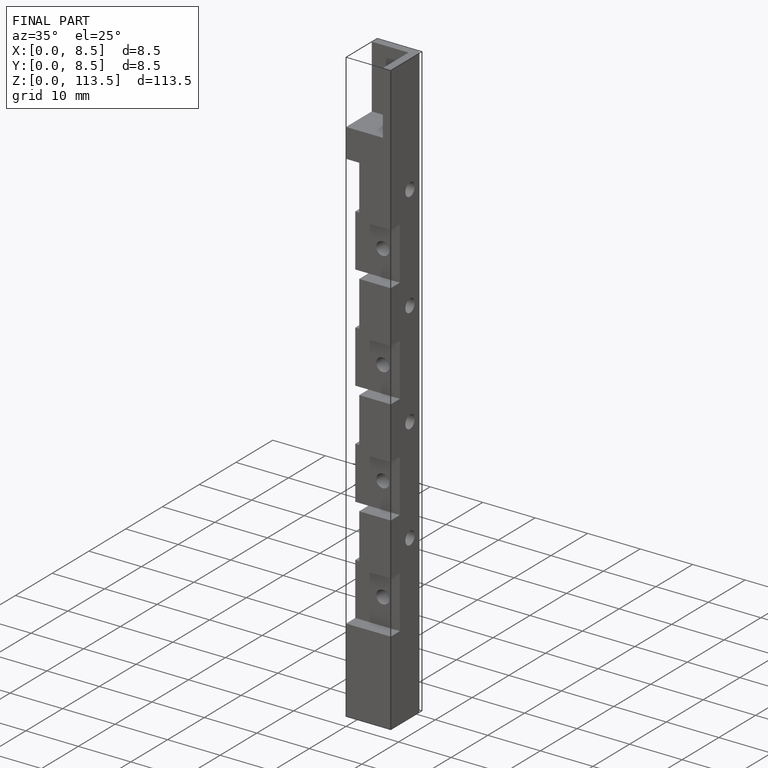
[diagram: finished part — iso view with bounding-box wireframe]
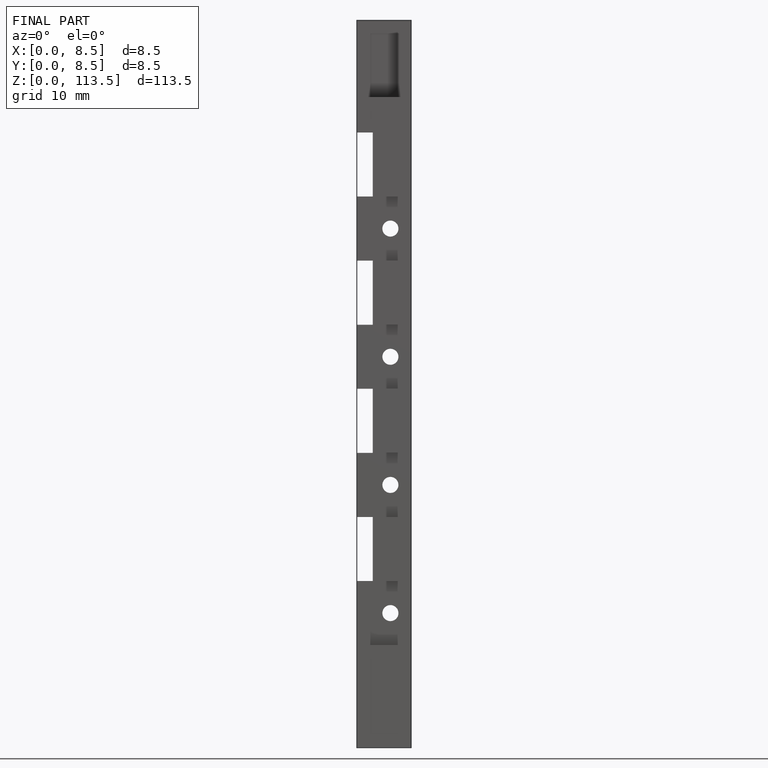
[diagram: finished part — front view with bounding-box wireframe]
